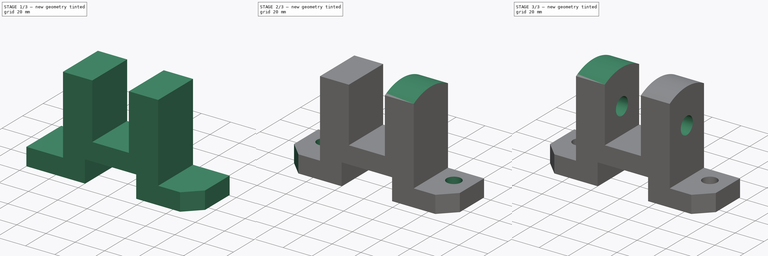
[diagram: build sequence overview — one tinted view per stage of 3, left to right]
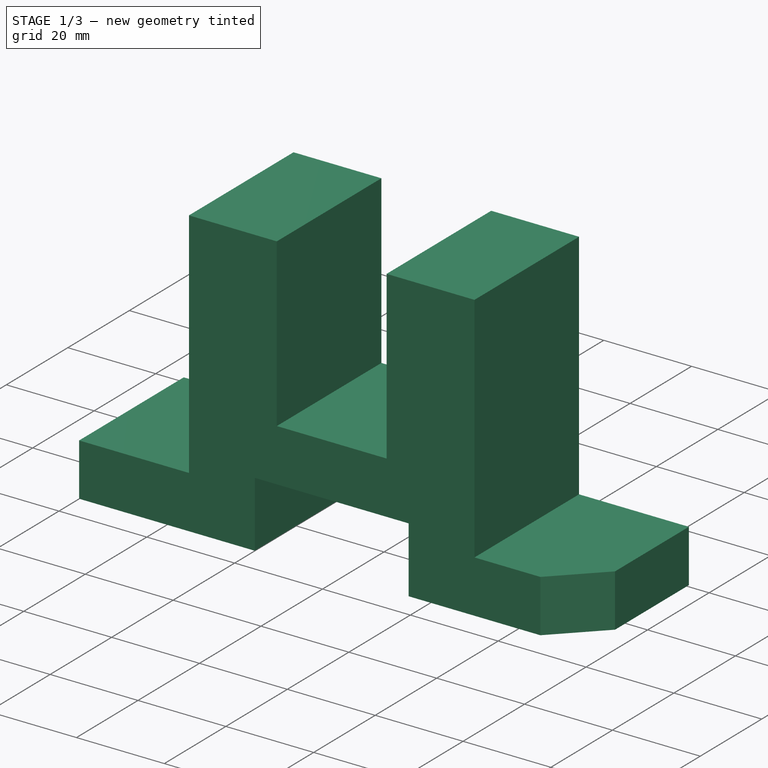
[diagram: stage 1 of 3 — iso view after this stage's code; geometry added in this stage tinted green]
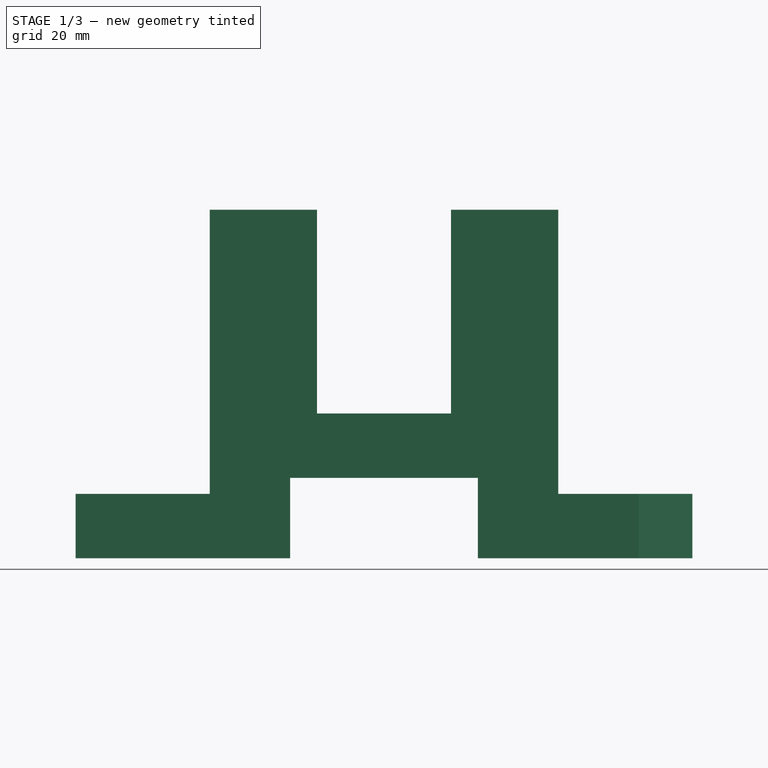
[diagram: stage 1 of 3 — front view after this stage's code; geometry added in this stage tinted green]
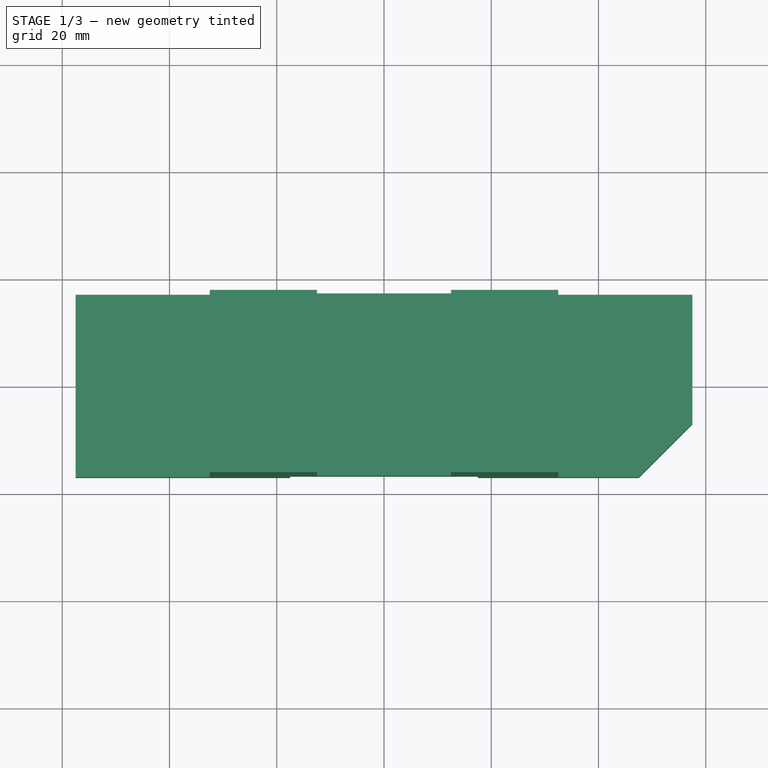
[diagram: stage 1 of 3 — top view after this stage's code; geometry added in this stage tinted green]
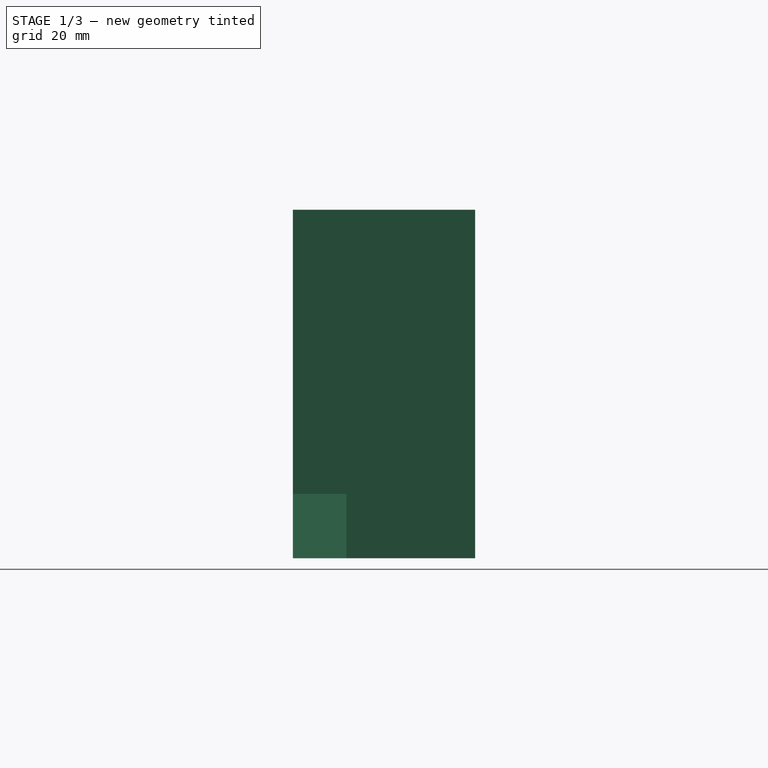
[diagram: stage 1 of 3 — right view after this stage's code; geometry added in this stage tinted green]
FCSTD DOCUMENT  (FreeCAD 0.16R)
Label: Ejer final 15
License: All rights reserved
LicenseURL: http://en.wikipedia.org/wiki/All_rights_reserved
objects: Sketcher::SketchObject×5, PartDesign::Pad×3, PartDesign::Chamfer×2, PartDesign::Pocket×2
note: 17 computed .brp shape members not serialized (recipe doc carries the construction recipe); baked Part::Feature solids carry a one-line shape summary decoded from their .brp

FEATURE [Sketcher::SketchObject] Sketch
  Placement = pos=(0,0,0) rot=(-1,0,0;4.71239rad)
  sketch-geometry (16):
    g0: LineSegment StartX=-57.5 StartY=0 StartZ=0 EndX=-17.5 EndY=0 EndZ=0
    g1: LineSegment StartX=-17.5 StartY=0 StartZ=0 EndX=-17.5 EndY=15 EndZ=0
    g2: LineSegment StartX=-17.5 StartY=15 StartZ=0 EndX=17.5 EndY=15 EndZ=0
    g3: LineSegment StartX=17.5 StartY=15 StartZ=0 EndX=17.5 EndY=0 EndZ=0
    g4: LineSegment StartX=17.5 StartY=0 StartZ=0 EndX=57.5 EndY=0 EndZ=0
    g5: LineSegment StartX=-57.5 StartY=0 StartZ=0 EndX=-57.5 EndY=12 EndZ=0
    g6: LineSegment StartX=-57.5 StartY=12 StartZ=0 EndX=-32.5 EndY=12 EndZ=0
    g7: LineSegment StartX=-32.5 StartY=12 StartZ=0 EndX=-32.5 EndY=65 EndZ=0
    g8: LineSegment StartX=-32.5 StartY=65 StartZ=0 EndX=-12.5 EndY=65 EndZ=0
    g9: LineSegment StartX=-12.5 StartY=65 StartZ=0 EndX=-12.5 EndY=27 EndZ=0
    g10: LineSegment StartX=-12.5 StartY=27 StartZ=0 EndX=12.5 EndY=27 EndZ=0
    g11: LineSegment StartX=12.5 StartY=27 StartZ=0 EndX=12.5 EndY=65 EndZ=0
    g12: LineSegment StartX=12.5 StartY=65 StartZ=0 EndX=32.5 EndY=65 EndZ=0
    g13: LineSegment StartX=32.5 StartY=65 StartZ=0 EndX=32.5 EndY=12 EndZ=0
    g14: LineSegment StartX=32.5 StartY=12 StartZ=0 EndX=57.5 EndY=12 EndZ=0
    g15: LineSegment StartX=57.5 StartY=12 StartZ=0 EndX=57.5 EndY=0 EndZ=0
  constraints (47):
    c: Horizontal(g0)
    c: Coincident(g0,g1)
    c: Vertical(g1)
    c: Coincident(g1,g2)
    c: Horizontal(g2)
    c: Coincident(g2,g3)
    c: PointOnObject(g3,g-1)
    c: Vertical(g3)
    c: Coincident(g3,g4)
    c: Horizontal(g4)
    c: Symmetric(g3,g0,g-2)
    c: DistanceX(g4,g4) = 40
    c: DistanceX(g0,g0) = 40
    c: Coincident(g0,g5)
    c: Vertical(g5)
    c: Coincident(g5,g6)
    c: Horizontal(g6)
    c: Coincident(g6,g7)
    c: Vertical(g7)
    c: Coincident(g7,g8)
    c: Horizontal(g8)
    c: Coincident(g8,g9)
    c: Vertical(g9)
    c: Coincident(g9,g10)
    c: Horizontal(g10)
    c: Coincident(g10,g11)
    c: Vertical(g11)
    c: Coincident(g11,g12)
    c: Horizontal(g12)
    c: Coincident(g12,g13)
    c: Vertical(g13)
    c: Coincident(g13,g14)
    c: Horizontal(g14)
    c: Coincident(g14,g15)
    c: Coincident(g15,g4)
    c: Vertical(g15)
    c: DistanceX(g2,g2) = 35
    c: Equal(g5,g15)
    c: DistanceY(g15,g15) = 12
    c: DistanceX(g6,g6) = 25
    c: DistanceX(g14,g14) = 25
    c: DistanceX(g8,g8) = 20
    c: DistanceX(g12,g12) = 20
    c: DistanceY(g13,g13) = 53
    c: DistanceY(g7,g7) = 53
    c: DistanceY(g9,g9) = 38
    c: DistanceY(g3,g3) = 15
FEATURE [PartDesign::Pad] Pad
  Length = 34
  Length2 = 100
  Midplane = true
  Placement = pos=(0,0,0) rot=(-1,0,0;4.71239rad)
  Sketch = -> Sketch
  Type = 0
FEATURE [PartDesign::Chamfer] Chamfer
  Base = -> Pad [Edge19]
  Placement = pos=(0,0,0) rot=(-1,0,0;4.71239rad)
  Size = 10
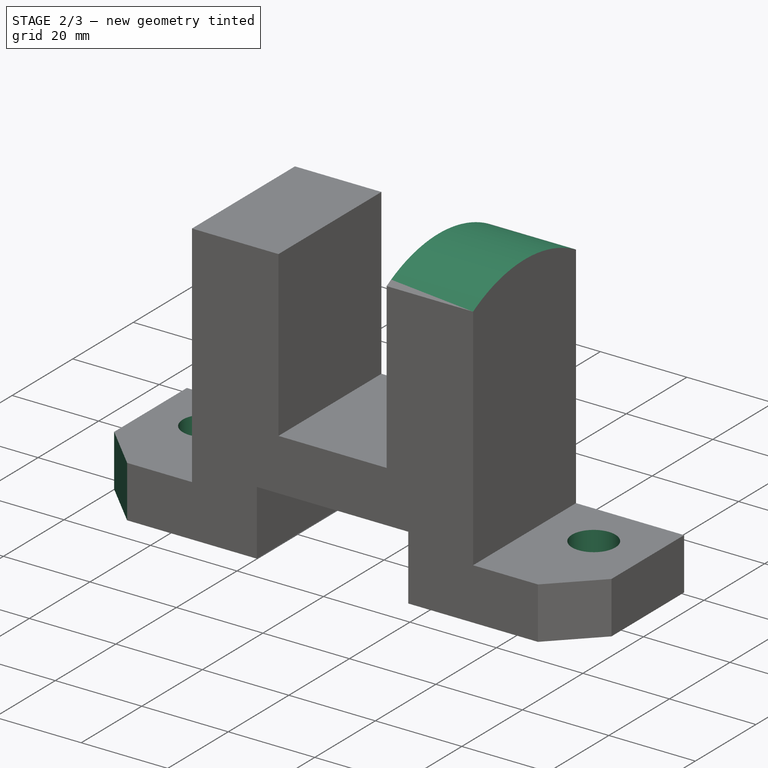
[diagram: stage 2 of 3 — iso view after this stage's code; geometry added in this stage tinted green]
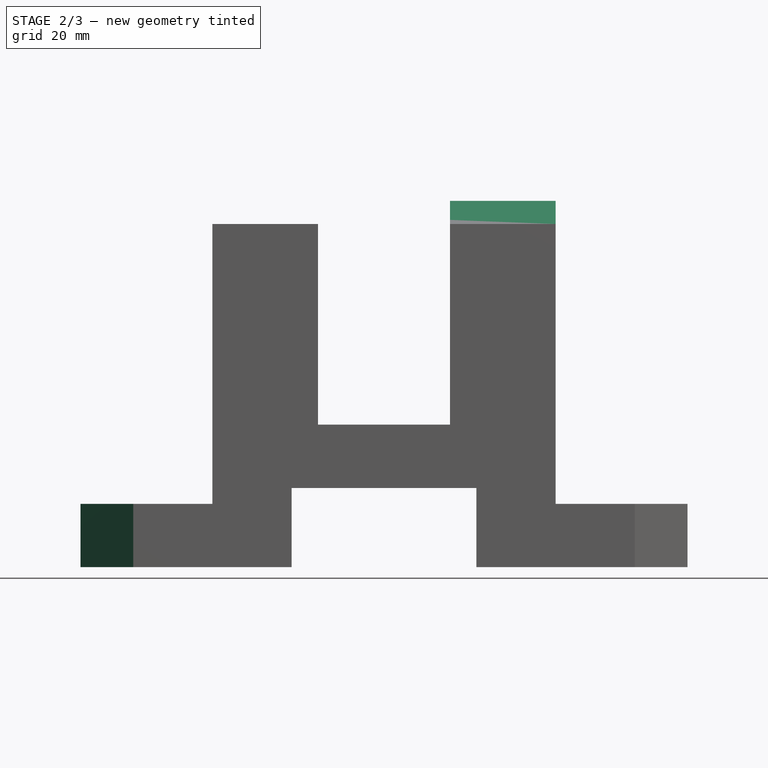
[diagram: stage 2 of 3 — front view after this stage's code; geometry added in this stage tinted green]
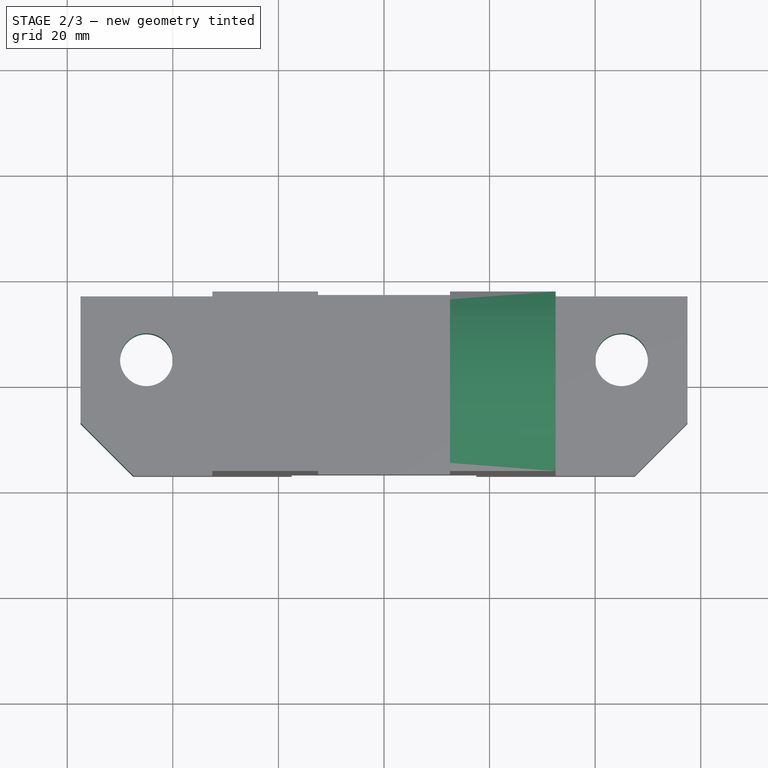
[diagram: stage 2 of 3 — top view after this stage's code; geometry added in this stage tinted green]
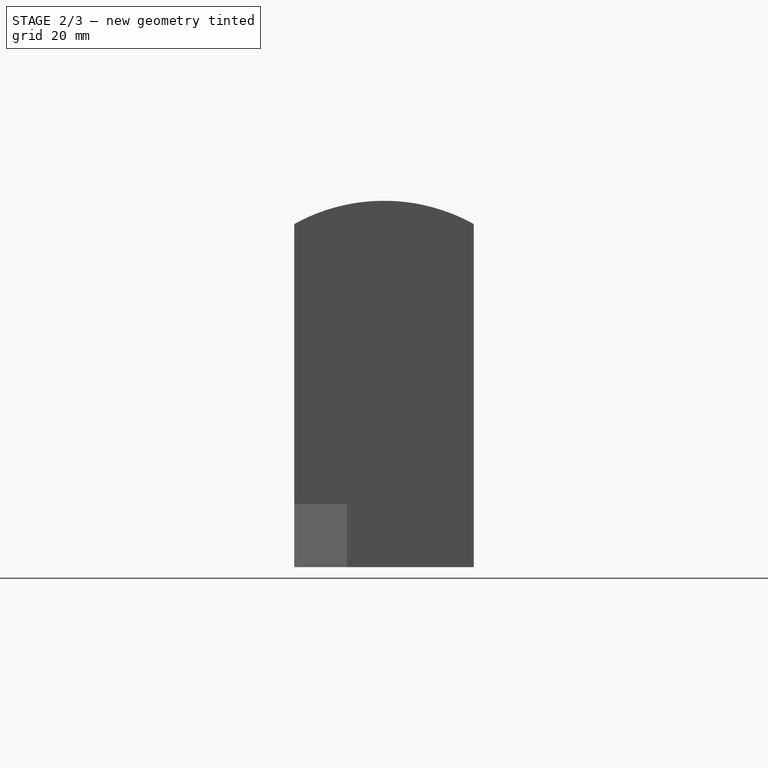
[diagram: stage 2 of 3 — right view after this stage's code; geometry added in this stage tinted green]
FEATURE [PartDesign::Chamfer] Chamfer001
  Base = -> Chamfer [Edge33]
  Placement = pos=(0,0,0) rot=(-1,0,0;4.71239rad)
  Size = 10
FEATURE [Sketcher::SketchObject] Sketch001
  ExternalGeometry = -> [Chamfer001]
  Placement = pos=(0,0,12) rot=(0,0,1;3.14159rad)
  Support = -> Chamfer001 [Face14]
  sketch-geometry (2):
    g0: Circle CenterX=45 CenterY=-5 CenterZ=0 NormalX=0 NormalY=0 NormalZ=1 Radius=5
    g1: Circle CenterX=-45 CenterY=-5 CenterZ=0 NormalX=0 NormalY=0 NormalZ=1 Radius=5
  constraints (6):
    c: DistanceY(g-3,g1) = 12
    c: DistanceY(g-6,g0) = 12
    c: Radius(g1) = 5
    c: Equal(g1,g0)
    c: DistanceX(g1,g0) = 90
    c: Symmetric(g1,g0,g-2)
FEATURE [PartDesign::Pocket] Pocket
  Length = 5
  Placement = pos=(0,0,0) rot=(-1,0,0;4.71239rad)
  Sketch = -> Sketch001
  Type = 1
FEATURE [Sketcher::SketchObject] Sketch002
  ExternalGeometry = -> [Pocket]
  Placement = pos=(32.5,0,0) rot=(0.707107,0,0.707107;3.14159rad)
  Support = -> Pocket [Face16]
  sketch-geometry (2):
    g0: ArcOfCircle CenterX=34.4059 CenterY=0 CenterZ=0 NormalX=0 NormalY=0 NormalZ=1 Radius=35 StartAngle=5.77601 EndAngle=6.79037
    g1: LineSegment StartX=65 StartY=17 StartZ=0 EndX=65 EndY=-17 EndZ=0
  constraints (5):
    c: Coincident(g0,g-3)
    c: Coincident(g0,g-3)
    c: Radius(g0) = 35
    c: Coincident(g1,g0)
    c: Coincident(g1,g0)
FEATURE [PartDesign::Pad] Pad001
  Length = 20
  Length2 = 100
  Placement = pos=(0,0,0) rot=(-1,0,0;4.71239rad)
  Reversed = true
  Sketch = -> Sketch002
  Type = 0
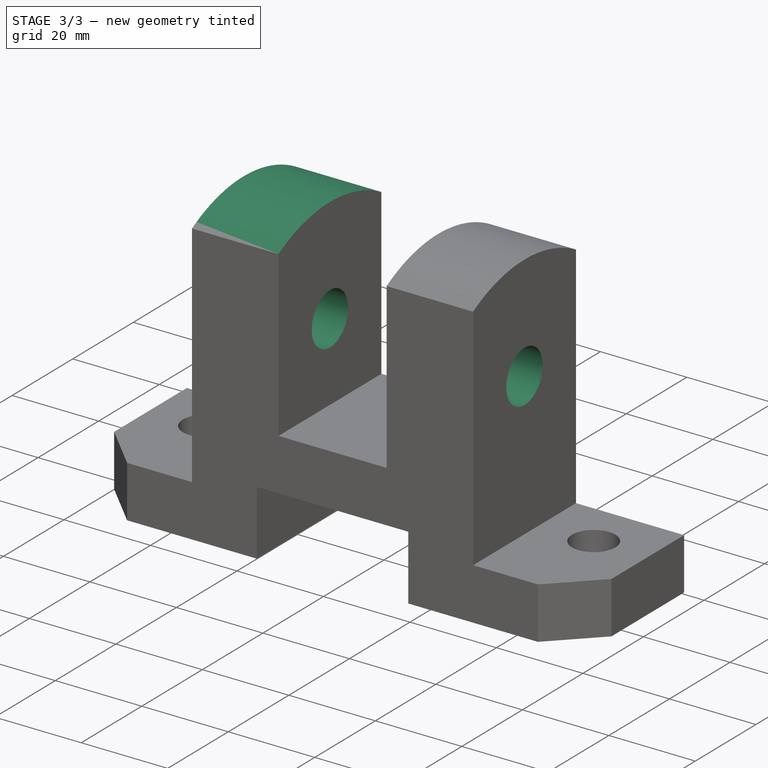
[diagram: stage 3 of 3 — iso view after this stage's code; geometry added in this stage tinted green]
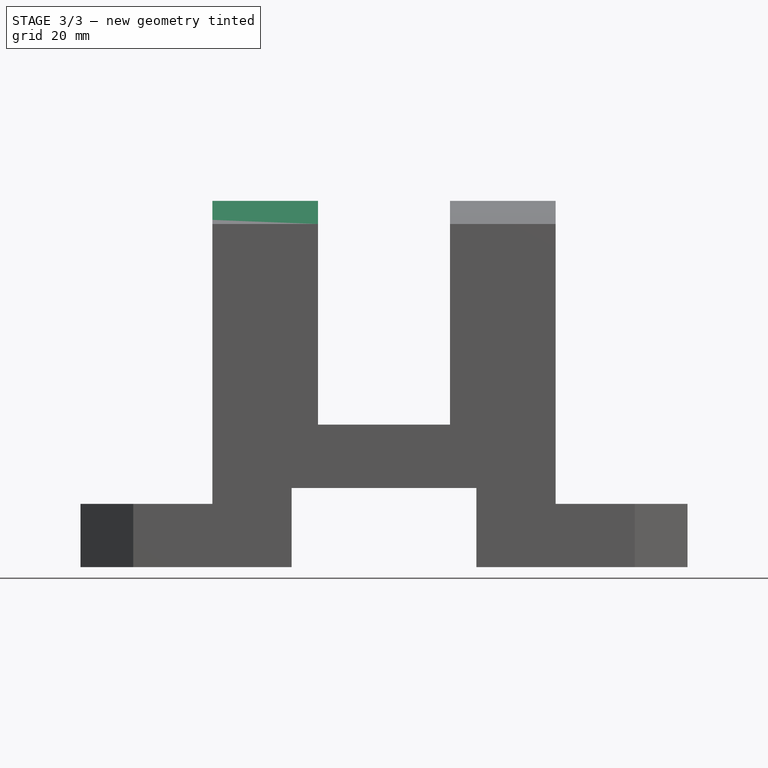
[diagram: stage 3 of 3 — front view after this stage's code; geometry added in this stage tinted green]
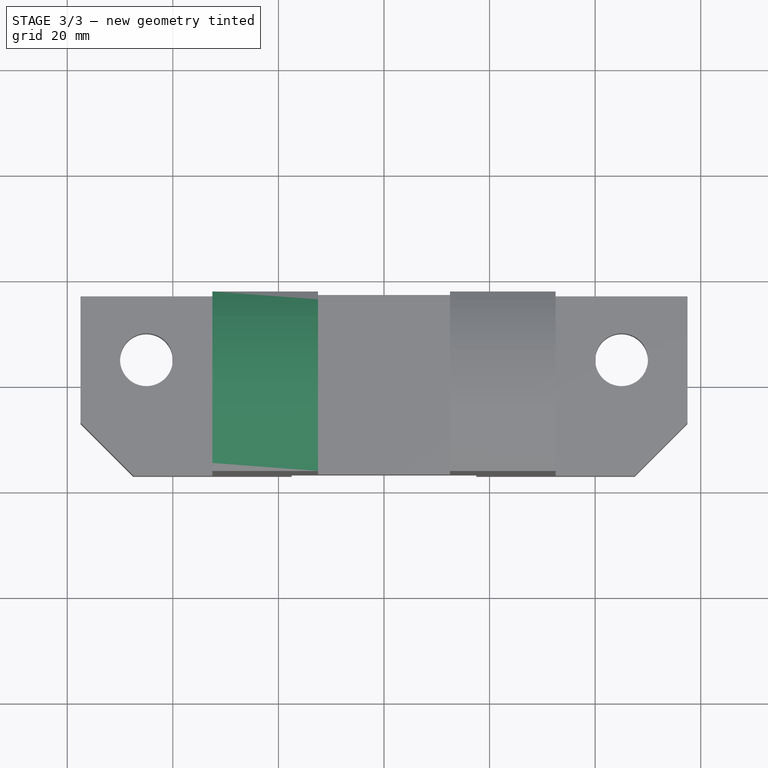
[diagram: stage 3 of 3 — top view after this stage's code; geometry added in this stage tinted green]
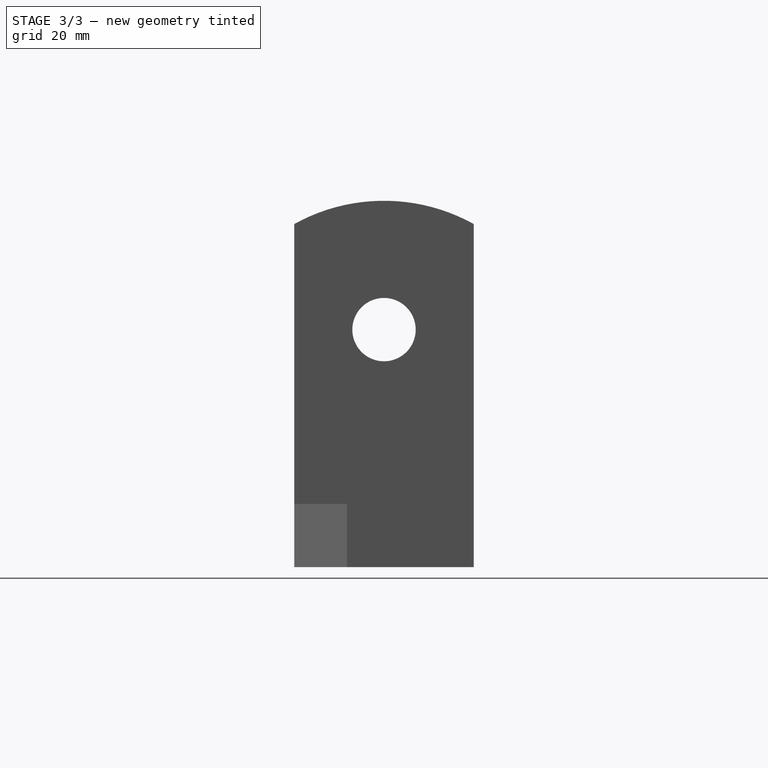
[diagram: stage 3 of 3 — right view after this stage's code; geometry added in this stage tinted green]
FEATURE [Sketcher::SketchObject] Sketch003
  ExternalGeometry = -> [Pad001]
  Placement = pos=(-32.5,0,0) rot=(0.707107,0,-0.707107;3.14159rad)
  Support = -> Pad001 [Face10]
  sketch-geometry (2):
    g0: ArcOfCircle CenterX=-34.4059 CenterY=0 CenterZ=0 NormalX=0 NormalY=0 NormalZ=1 Radius=35 StartAngle=2.63441 EndAngle=3.64877
    g1: LineSegment StartX=-65 StartY=17 StartZ=0 EndX=-65 EndY=-17 EndZ=0
  constraints (5):
    c: Coincident(g0,g-3)
    c: Coincident(g0,g-3)
    c: Coincident(g1,g0)
    c: Coincident(g1,g0)
    c: Radius(g0) = 35
FEATURE [PartDesign::Pad] Pad002
  Length = 20
  Length2 = 100
  Placement = pos=(0,0,0) rot=(-1,0,0;4.71239rad)
  Reversed = true
  Sketch = -> Sketch003
  Type = 0
FEATURE [Sketcher::SketchObject] Sketch004
  Placement = pos=(32.5,0,0) rot=(0.707107,0,0.707107;3.14159rad)
  Support = -> Pad002 [Face17]
  sketch-geometry (1):
    g0: Circle CenterX=45 CenterY=0 CenterZ=0 NormalX=0 NormalY=0 NormalZ=1 Radius=6
  constraints (3):
    c: PointOnObject(g0,g-1)
    c: Radius(g0) = 6
    c: DistanceX(g-1,g0) = 45
FEATURE [PartDesign::Pocket] Pocket001
  Length = 5
  Placement = pos=(0,0,0) rot=(-1,0,0;4.71239rad)
  Sketch = -> Sketch004
  Type = 1
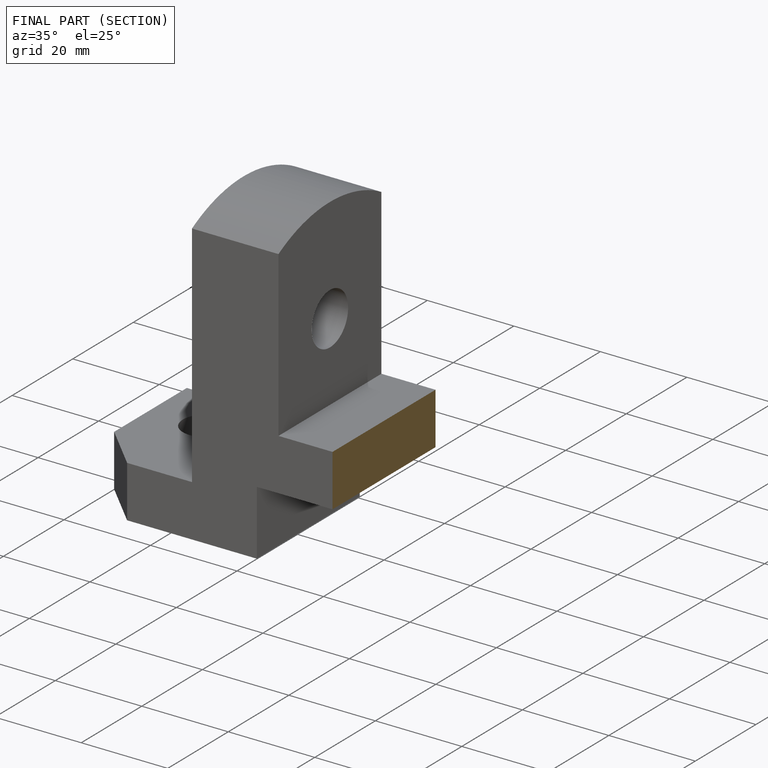
[diagram: finished part — half-section view (interior)]
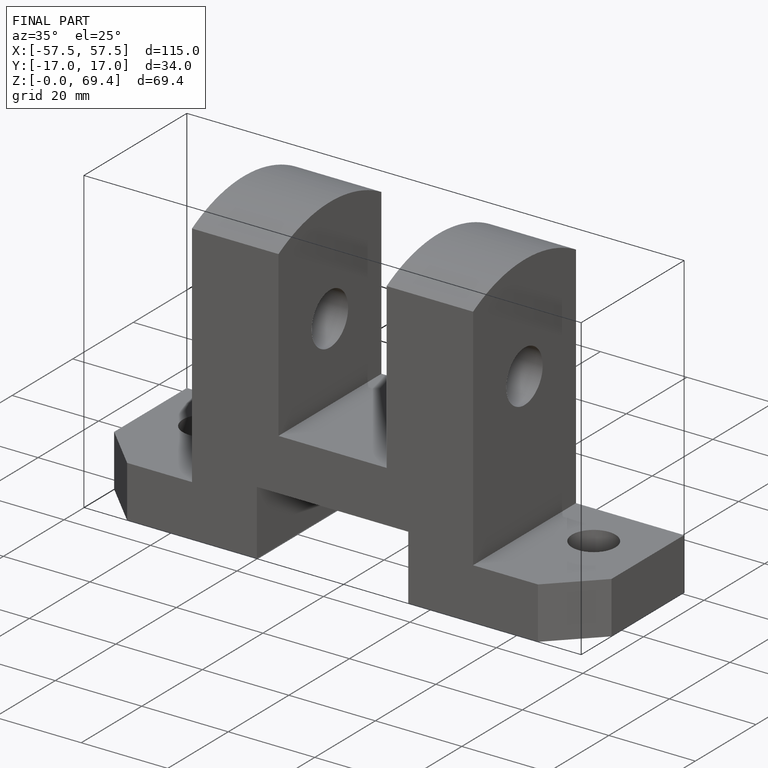
[diagram: finished part — iso view with bounding-box wireframe]
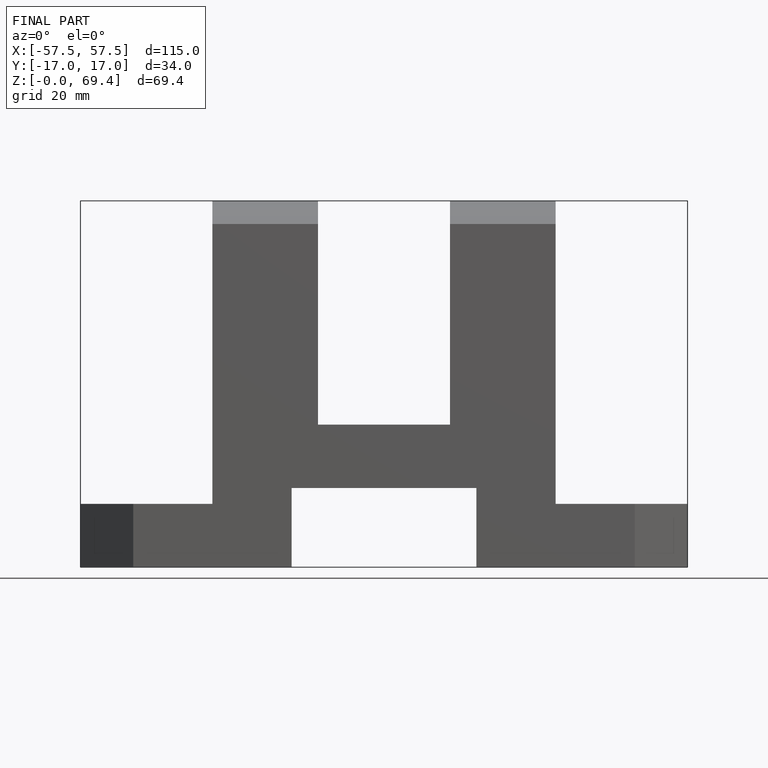
[diagram: finished part — front view with bounding-box wireframe]
